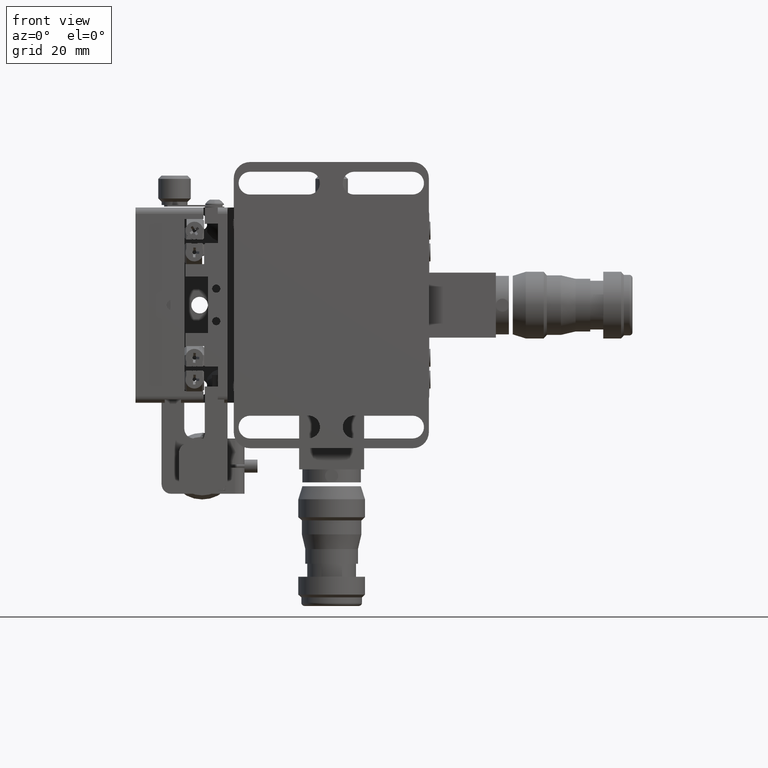
[diagram: clean part render]
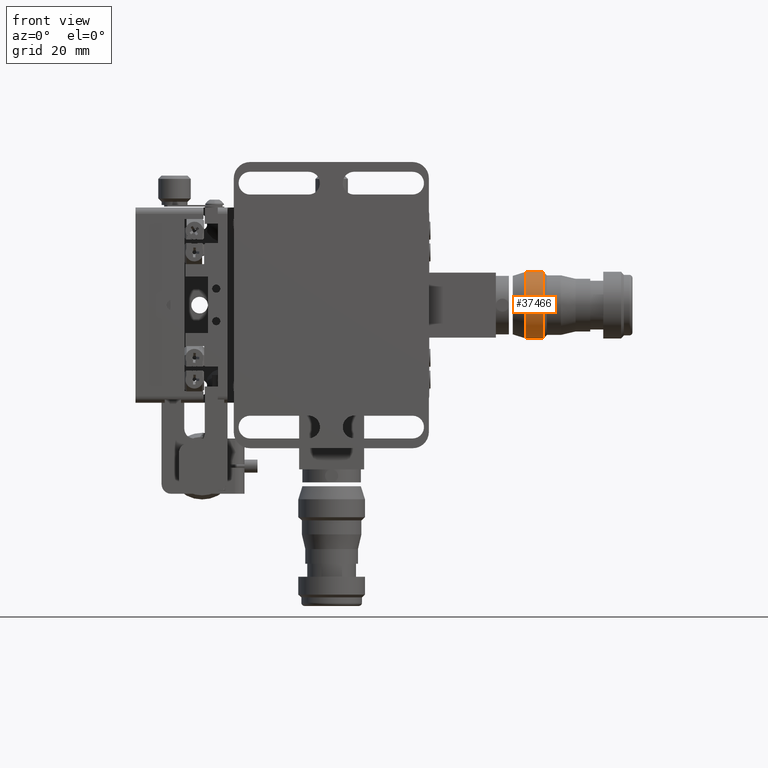
[diagram: same view with one face highlighted and labeled with its STEP entity id]
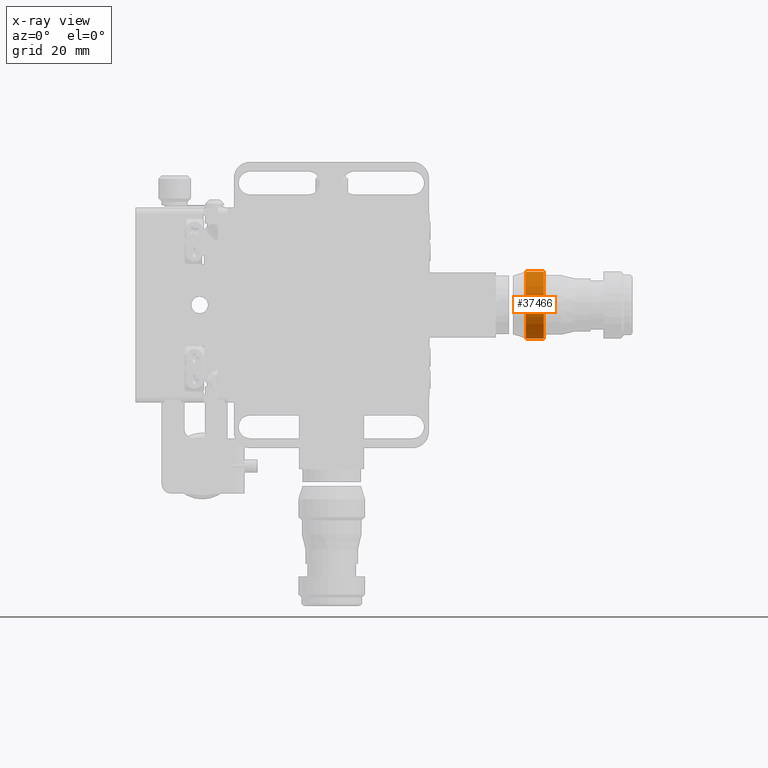
[diagram: x-ray of the same camera — body ghosted, the highlighted face saturated]
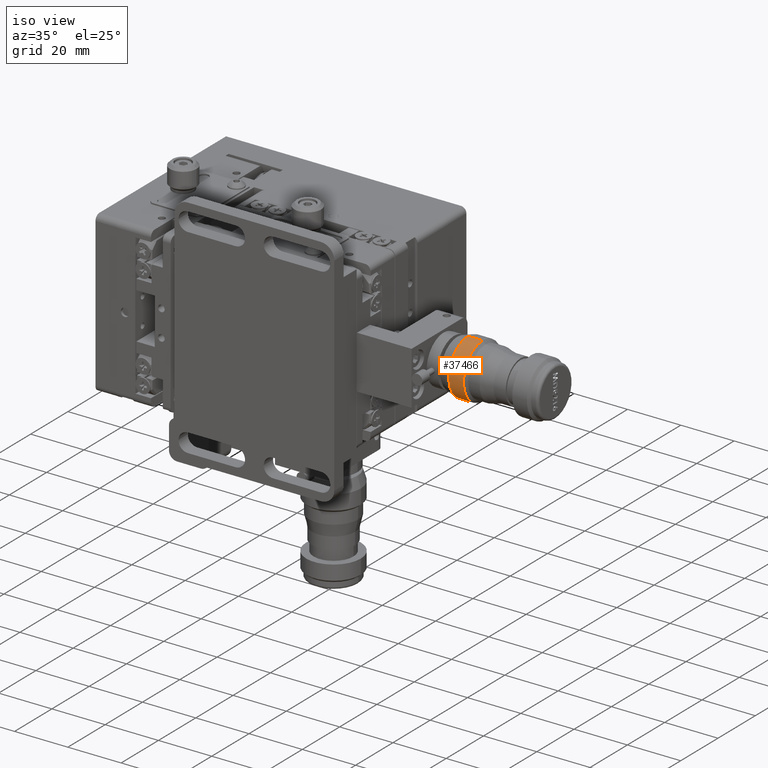
[diagram: same view with one face highlighted and labeled with its STEP entity id]
A machine part, front view. The second image highlights one B-rep face of the part: STEP entity #37466.
The next image is the same camera in x-ray: the body ghosted, the highlighted face saturated — about 0% of this face is hidden behind the body in this view.
A second angle (iso view) of the same face is appended — the face is thin or edge-on in the first view.
In plain terms, the highlighted cylindrical surface (edge-blend (fillet) strip) has radius 10.25 mm, axis along (-1, 0, -0).
Its self-contained STEP definition (entity closure, byte-faithful):
#4221 = CIRCLE ( 'NONE', #47772, 10.25000000000000500 ) ;
#4995 = CARTESIAN_POINT ( 'NONE',  ( 59.79999999999943600, 29.09999999999996600, 10.25000000000024700 ) ) ;
#5232 = CARTESIAN_POINT ( 'NONE',  ( 65.29999999999945700, 29.09999999999996600, 2.405616353705615200E-013 ) ) ;
#5451 = ORIENTED_EDGE ( 'NONE', *, *, #55704, .T. ) ;
#8974 = EDGE_CURVE ( 'NONE', #11963, #46143, #21261, .T. ) ;
#10618 = CARTESIAN_POINT ( 'NONE',  ( 65.29999999999945700, 29.09999999999999400, -10.24999999999975700 ) ) ;
#11269 = VECTOR ( 'NONE', #56283, 1000.000000000000000 ) ;
#11963 = VERTEX_POINT ( 'NONE', #49735 ) ;
#15083 = CARTESIAN_POINT ( 'NONE',  ( 65.29999999999945700, 29.09999999999996600, 10.25000000000024700 ) ) ;
#18135 = DIRECTION ( 'NONE',  ( -1.000000000000000000, 7.805211785739509600E-031, -3.155443620884047200E-030 ) ) ;
#20127 = CARTESIAN_POINT ( 'NONE',  ( 33.90945106338501300, 29.09999999999999400, -10.24999999999975100 ) ) ;
#21261 = CIRCLE ( 'NONE', #52113, 10.25000000000000500 ) ;
#22228 = CYLINDRICAL_SURFACE ( 'NONE', #50028, 10.25000000000000500 ) ;
#23302 = EDGE_LOOP ( 'NONE', ( #42730, #46198, #5451, #43390 ) ) ;
#24758 = EDGE_CURVE ( 'NONE', #30532, #28602, #4221, .T. ) ;
#27487 = LINE ( 'NONE', #20127, #11269 ) ;
#28602 = VERTEX_POINT ( 'NONE', #15083 ) ;
#28743 = VECTOR ( 'NONE', #56952, 1000.000000000000000 ) ;
#30532 = VERTEX_POINT ( 'NONE', #10618 ) ;
#31860 = DIRECTION ( 'NONE',  ( 0.0000000000000000000, 0.0000000000000000000, 1.000000000000000000 ) ) ;
#31984 = DIRECTION ( 'NONE',  ( 0.0000000000000000000, 0.0000000000000000000, 1.000000000000000000 ) ) ;
#32202 = FACE_OUTER_BOUND ( 'NONE', #23302, .T. ) ;
#32848 = DIRECTION ( 'NONE',  ( 0.0000000000000000000, 0.0000000000000000000, 1.000000000000000000 ) ) ;
#33046 = DIRECTION ( 'NONE',  ( -1.000000000000000000, 7.805211785739509600E-031, -3.155443620884047200E-030 ) ) ;
#36830 = DIRECTION ( 'NONE',  ( -1.000000000000000000, 7.805211785739509600E-031, -3.155443620884047200E-030 ) ) ;
#37466 = ADVANCED_FACE ( 'NONE', ( #32202 ), #22228, .T. ) ;
#37592 = CARTESIAN_POINT ( 'NONE',  ( 59.79999999999943600, 29.09999999999996600, 2.405616353705615200E-013 ) ) ;
#40812 = LINE ( 'NONE', #47711, #28743 ) ;
#41660 = CARTESIAN_POINT ( 'NONE',  ( 33.90945106338501300, 29.09999999999999400, 2.544394231783759700E-013 ) ) ;
#42730 = ORIENTED_EDGE ( 'NONE', *, *, #43944, .F. ) ;
#43390 = ORIENTED_EDGE ( 'NONE', *, *, #8974, .F. ) ;
#43944 = EDGE_CURVE ( 'NONE', #30532, #11963, #27487, .T. ) ;
#46143 = VERTEX_POINT ( 'NONE', #4995 ) ;
#46198 = ORIENTED_EDGE ( 'NONE', *, *, #24758, .T. ) ;
#47711 = CARTESIAN_POINT ( 'NONE',  ( 33.90945106338501300, 29.09999999999999400, 10.25000000000026100 ) ) ;
#47772 = AXIS2_PLACEMENT_3D ( 'NONE', #5232, #36830, #31860 ) ;
#49735 = CARTESIAN_POINT ( 'NONE',  ( 59.79999999999943600, 29.09999999999996600, -10.24999999999976400 ) ) ;
#50028 = AXIS2_PLACEMENT_3D ( 'NONE', #41660, #18135, #31984 ) ;
#52113 = AXIS2_PLACEMENT_3D ( 'NONE', #37592, #33046, #32848 ) ;
#55704 = EDGE_CURVE ( 'NONE', #28602, #46143, #40812, .T. ) ;
#56283 = DIRECTION ( 'NONE',  ( -1.000000000000000000, 7.805211785739509600E-031, -3.155443620884047200E-030 ) ) ;
#56952 = DIRECTION ( 'NONE',  ( -1.000000000000000000, 7.805211785739509600E-031, -3.155443620884047200E-030 ) ) ;